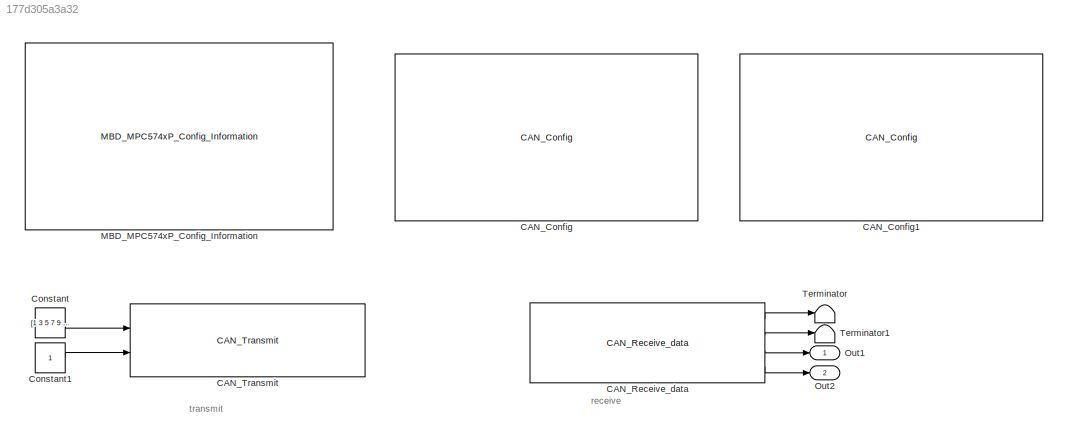
MODEL slx_177d305a3a32
KIND model
CONFIG AbsTol = auto
CONFIG EnableMultiTasking = off
CONFIG FixedStep = 0.04
CONFIG InitFcn = mbd_pnt_consistency_checks(bdroot(gcs));
CONFIG MaxStep = auto
CONFIG MinStep = auto
CONFIG RelTol = 1e-3
CONFIG SampleTimeConstraint = Unconstrained
CONFIG Solver = FixedStepDiscrete
CONFIG SolverName = FixedStepDiscrete
CONFIG StartTime = 0.0
CONFIG StopTime = 10.0
WORKSPACE source: MAT-file member
WORKSPACE CONVERTER_DATA = [0 0.1 0.2 0.3 0.4 0.5 0.6 0.7 0.8 0.81 0.82 0.83 ... (63 elements, 21x3)]
BLOCK [Reference] CAN_Config  REF=mbd_pnt_ec_toolbox/MPC574xP/Communication Blocks/CAN_Config
  Ports = []
  Priority = 1
  SourceBlock = mbd_pnt_ec_toolbox/MPC574xP/Communication Blocks/CAN_Config
  SourceProductName = Model Based Design Toolbox for MPC574xP
  SourceType = flexcan_pnt_config_block
BLOCK [Reference] CAN_Config1  REF=mbd_pnt_ec_toolbox/MPC574xP/Communication Blocks/CAN_Config
  Ports = []
  Priority = 1
  SourceBlock = mbd_pnt_ec_toolbox/MPC574xP/Communication Blocks/CAN_Config
  SourceProductName = Model Based Design Toolbox for MPC574xP
  SourceType = flexcan_pnt_config_block
BLOCK [Reference] CAN_Receive_data  REF=mbd_pnt_ec_toolbox/MPC574xP/Communication Blocks/CAN_Receive_data
  Ports = [0, 4]
  SourceBlock = mbd_pnt_ec_toolbox/MPC574xP/Communication Blocks/CAN_Receive_data
  SourceProductName = Model Based Design Toolbox for MPC574xP
  SourceType = flexcan_pnt_receive_data_block
BLOCK [Reference] CAN_Transmit  REF=mbd_pnt_ec_toolbox/MPC574xP/Communication Blocks/CAN_Transmit
  Ports = [2]
  SourceBlock = mbd_pnt_ec_toolbox/MPC574xP/Communication Blocks/CAN_Transmit
  SourceProductName = Model Based Design Toolbox for MPC574xP
  SourceType = flexcan_pnt_transmit_block
BLOCK [Constant] Constant
  OutDataTypeStr = uint8
  Value = [1 3 5 7 9 11 13 15]
BLOCK [Constant] Constant1
  OutDataTypeStr = fixdt('uint8', 'DataTypeOverride', 'Off')
BLOCK [Reference] MBD_MPC574xP_Config_Information  REF=mbd_pnt_ec_toolbox/MPC574xP/MBD_MPC574xP_Config_Information
  Ports = []
  SourceBlock = mbd_pnt_ec_toolbox/MPC574xP/MBD_MPC574xP_Config_Information
  SourceProductName = Model Based Design Toolbox for MPC574xP
  SourceType = MBDTBX_EC_PNT
BLOCK [Outport] Out1
  IconDisplay = Port number
BLOCK [Outport] Out2
  IconDisplay = Port number
  Port = 2
BLOCK [Terminator] Terminator
BLOCK [Terminator] Terminator1
ANNOTATION (root): receive
ANNOTATION (root): transmit
LINE CAN_Receive_data:1 -> Terminator:1
LINE CAN_Receive_data:2 -> Terminator1:1
LINE CAN_Receive_data:3 -> Out1:1
LINE CAN_Receive_data:4 -> Out2:1
LINE Constant1:1 -> CAN_Transmit:2
LINE Constant:1 -> CAN_Transmit:1
